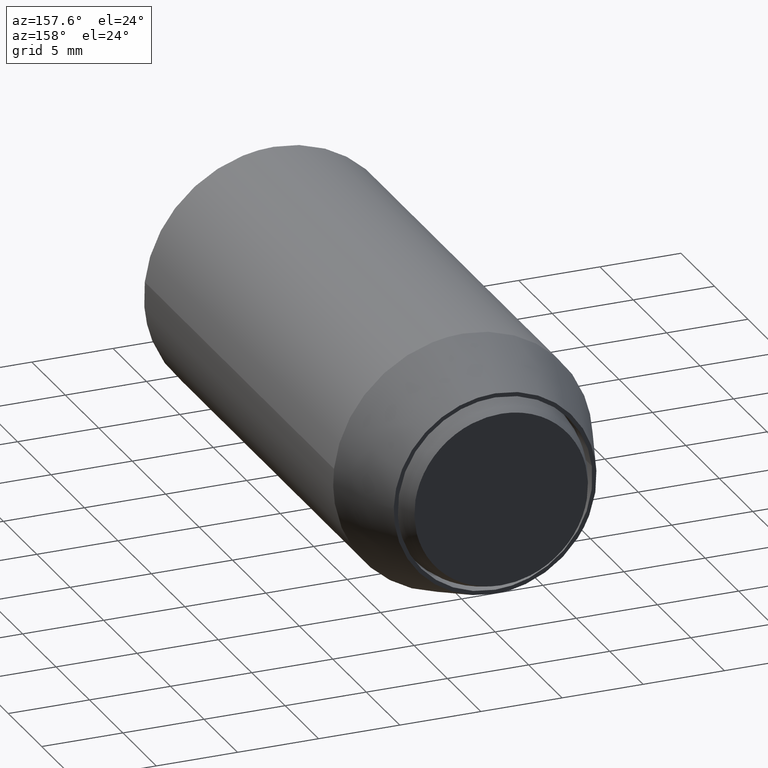
[diagram: clean part render]
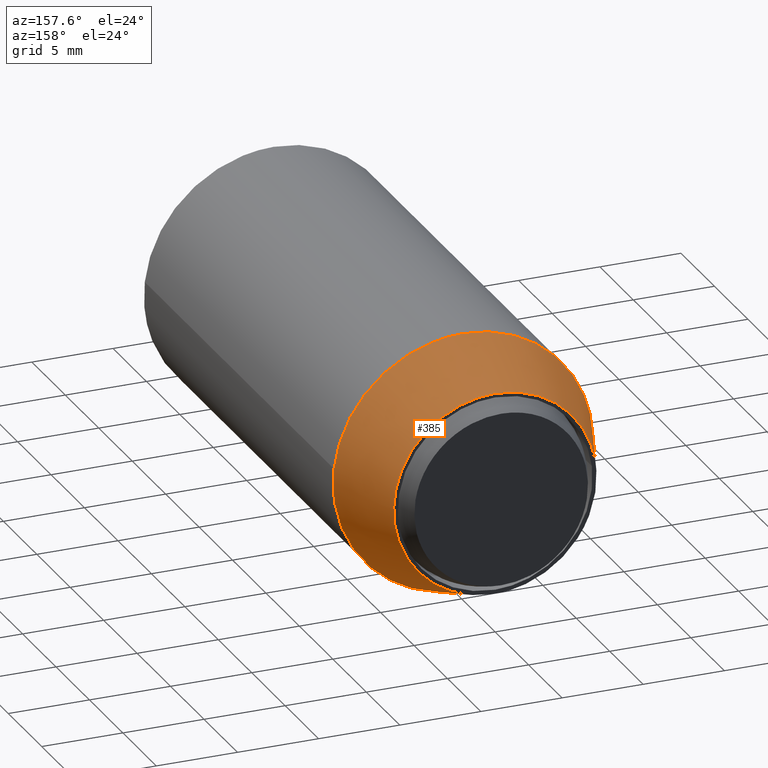
[diagram: same view with one face highlighted and labeled with its STEP entity id]
A machine part, auxiliary view. The second image highlights one B-rep face of the part: STEP entity #385.
In plain terms, the highlighted face is a freeform B-spline surface patch.
Its self-contained STEP definition (entity closure, byte-faithful):
#234=CARTESIAN_POINT('',(-5.033104737249632,0.120202150000000,-3.631170027191690));
#235=CARTESIAN_POINT('',(-3.313123014859355,0.120202150000000,-6.015208254572740));
#236=CARTESIAN_POINT('',(-0.378882498488206,0.120202150000000,-6.194674092705710));
#237=CARTESIAN_POINT('',(5.815791594217503,0.120202150000000,-6.573556591193916));
#238=CARTESIAN_POINT('',(6.194674092705709,0.120202150000000,-0.378882498488207));
#239=CARTESIAN_POINT('',(6.573556591193915,0.120202150000000,5.815791594217502));
#240=CARTESIAN_POINT('',(0.378882498488206,0.120202150000000,6.194674092705708));
#241=CARTESIAN_POINT('',(-5.815791594217503,0.120202150000000,6.573556591193914));
#242=CARTESIAN_POINT('',(-6.194674092705709,0.120202150000000,0.378882498488205));
#243=CARTESIAN_POINT('',(-6.524155679928798,-4.931293203749999,-4.706899576787980));
#244=CARTESIAN_POINT('',(-4.294631537413486,-4.931293203750000,-7.797206127975497));
#245=CARTESIAN_POINT('',(-0.491125961723622,-4.931293203750000,-8.029838494741666));
#246=CARTESIAN_POINT('',(7.538712533018043,-4.931293203750001,-8.520964456465288));
#247=CARTESIAN_POINT('',(8.029838494741664,-4.931293203750000,-0.491125961723623));
#248=CARTESIAN_POINT('',(8.520964456465288,-4.931293203750001,7.538712533018041));
#249=CARTESIAN_POINT('',(0.491125961723622,-4.931293203750000,8.029838494741663));
#250=CARTESIAN_POINT('',(-7.538712533018043,-4.931293203750001,8.520964456465284));
#251=CARTESIAN_POINT('',(-8.029838494741664,-4.931293203750000,0.491125961723621));
#259=(BOUNDED_SURFACE()B_SPLINE_SURFACE(2,1,((#234,#243),(#235,#244),(#236,#245),(#237,#246),(#238,#247),(#239,#248),(#240,#249),(#241,#250),(#242,#251)),.UNSPECIFIED.,.F.,.F.,.U.)B_SPLINE_SURFACE_WITH_KNOTS((3,2,2,2,3),(2,2),(0.0,7.464314790066237,20.793448343755941,34.122581897445663,47.451715451135371),(0.0,5.375689005745859),.UNSPECIFIED.)GEOMETRIC_REPRESENTATION_ITEM()RATIONAL_B_SPLINE_SURFACE(((0.855662221768731,0.855662221768731),(0.835979797464467,0.835979797464467),(1.0,1.0),(0.707106781186548,0.707106781186548),(1.0,1.0),(0.707106781186548,0.707106781186548),(1.0,1.0),(0.707106781186548,0.707106781186548),(1.0,1.0)))REPRESENTATION_ITEM('')SURFACE());
#260=CARTESIAN_POINT('',(-5.068584831065254,-3.391263E-013,-3.656767398987356));
#261=VERTEX_POINT('',#260);
#262=CARTESIAN_POINT('',(0.0,0.0,-6.250000000000001));
#263=VERTEX_POINT('',#262);
#264=CARTESIAN_POINT('',(-5.068584831065254,-3.391263E-013,-3.656767398987356));
#265=CARTESIAN_POINT('',(-3.197678305980489,0.0,-6.250000000000002));
#266=CARTESIAN_POINT('',(0.0,0.0,-6.250000000000001));
#274=(BOUNDED_CURVE()B_SPLINE_CURVE(2,(#264,#265,#266),.UNSPECIFIED.,.F.,.U.)B_SPLINE_CURVE_WITH_KNOTS((3,3),(0.850743050382160,1.0),.UNSPECIFIED.)CURVE()GEOMETRIC_REPRESENTATION_ITEM()RATIONAL_B_SPLINE_CURVE((0.859068214727271,0.825134606384615,1.0))REPRESENTATION_ITEM(''));
#275=EDGE_CURVE('',#261,#263,#274,.T.);
#276=ORIENTED_EDGE('',*,*,#275,.T.);
#277=CARTESIAN_POINT('',(0.0,0.0,6.249999999999999));
#278=VERTEX_POINT('',#277);
#279=CARTESIAN_POINT('',(0.0,0.0,-6.250000000000001));
#280=CARTESIAN_POINT('',(6.249999999999999,0.0,-6.250000000000002));
#281=CARTESIAN_POINT('',(6.250000000000000,0.0,-1.291960E-015));
#282=CARTESIAN_POINT('',(6.249999999999999,0.0,6.249999999999999));
#283=CARTESIAN_POINT('',(0.0,0.0,6.249999999999999));
#291=(BOUNDED_CURVE()B_SPLINE_CURVE(2,(#279,#280,#281,#282,#283),.UNSPECIFIED.,.F.,.U.)B_SPLINE_CURVE_WITH_KNOTS((3,2,3),(0.0,0.250000000000000,0.500000000000000),.UNSPECIFIED.)CURVE()GEOMETRIC_REPRESENTATION_ITEM()RATIONAL_B_SPLINE_CURVE((1.0,0.707106781186547,1.0,0.707106781186547,1.0))REPRESENTATION_ITEM(''));
#292=EDGE_CURVE('',#263,#278,#291,.T.);
#293=ORIENTED_EDGE('',*,*,#292,.T.);
#294=CARTESIAN_POINT('',(-6.238341910631632,0.000001987883536,0.381550995179467));
#295=VERTEX_POINT('',#294);
#296=CARTESIAN_POINT('',(0.0,0.0,6.249999999999999));
#297=CARTESIAN_POINT('',(-5.879414759705009,0.000000993941768,6.249999977914886));
#298=CARTESIAN_POINT('',(-6.238341910631632,0.000001987883536,0.381550995179467));
#306=(BOUNDED_CURVE()B_SPLINE_CURVE(2,(#296,#297,#298),.UNSPECIFIED.,.F.,.U.)B_SPLINE_CURVE_WITH_KNOTS((3,3),(0.500000000000000,0.739333026763493),.UNSPECIFIED.)CURVE()GEOMETRIC_REPRESENTATION_ITEM()RATIONAL_B_SPLINE_CURVE((1.0,0.719603917691498,0.976072179955150))REPRESENTATION_ITEM(''));
#307=EDGE_CURVE('',#278,#295,#306,.T.);
#308=ORIENTED_EDGE('',*,*,#307,.T.);
#309=CARTESIAN_POINT('',(-7.985078436995666,-4.808085999013084,0.488387499100347));
#310=VERTEX_POINT('',#309);
#311=CARTESIAN_POINT('',(-6.238341910631632,0.000001987883536,0.381550995179467));
#312=CARTESIAN_POINT('',(-7.985078436995666,-4.808085999013084,0.488387499100347));
#313=QUASI_UNIFORM_CURVE('',1,(#311,#312),.UNSPECIFIED.,.F.,.U.);
#314=EDGE_CURVE('',#295,#310,#313,.T.);
#315=ORIENTED_EDGE('',*,*,#314,.T.);
#316=CARTESIAN_POINT('',(0.0,-4.808085999999999,7.999999999999998));
#317=VERTEX_POINT('',#316);
#318=CARTESIAN_POINT('',(0.0,-4.808085999999999,7.999999999999998));
#319=CARTESIAN_POINT('',(-7.525649306825357,-4.808086000000000,7.999999999999999));
#320=CARTESIAN_POINT('',(-7.985078436995666,-4.808085999013084,0.488387499100347));
#328=(BOUNDED_CURVE()B_SPLINE_CURVE(2,(#318,#319,#320),.UNSPECIFIED.,.F.,.U.)B_SPLINE_CURVE_WITH_KNOTS((3,3),(0.500000000000000,0.739332979899622),.UNSPECIFIED.)CURVE()GEOMETRIC_REPRESENTATION_ITEM()RATIONAL_B_SPLINE_CURVE((1.0,0.719603972595938,0.976072079516917))REPRESENTATION_ITEM(''));
#329=EDGE_CURVE('',#317,#310,#328,.T.);
#330=ORIENTED_EDGE('',*,*,#329,.F.);
#331=CARTESIAN_POINT('',(7.947754839124859,-4.808085999999999,0.912794071540353));
#332=VERTEX_POINT('',#331);
#333=CARTESIAN_POINT('',(7.947754839124859,-4.808085999999999,0.912794071540353));
#334=CARTESIAN_POINT('',(7.133794206699027,-4.808086000000000,7.999999999999999));
#335=CARTESIAN_POINT('',(0.0,-4.808085999999999,7.999999999999998));
#343=(BOUNDED_CURVE()B_SPLINE_CURVE(2,(#333,#334,#335),.UNSPECIFIED.,.F.,.U.)B_SPLINE_CURVE_WITH_KNOTS((3,3),(0.269767516400934,0.500000000000000),.UNSPECIFIED.)CURVE()GEOMETRIC_REPRESENTATION_ITEM()RATIONAL_B_SPLINE_CURVE((0.957344208849934,0.730265867213016,1.0))REPRESENTATION_ITEM(''));
#344=EDGE_CURVE('',#332,#317,#343,.T.);
#345=ORIENTED_EDGE('',*,*,#344,.F.);
#346=CARTESIAN_POINT('',(0.0,-4.808085999999999,-8.000000000000002));
#347=VERTEX_POINT('',#346);
#348=CARTESIAN_POINT('',(0.0,-4.808085999999999,-8.000000000000002));
#349=CARTESIAN_POINT('',(8.0,-4.808086000000000,-8.000000000000002));
#350=CARTESIAN_POINT('',(8.0,-4.808085999999999,-1.291960E-015));
#351=CARTESIAN_POINT('',(8.0,-4.808085999999999,0.457892201503595));
#352=CARTESIAN_POINT('',(7.947754839124859,-4.808085999999999,0.912794071540353));
#360=(BOUNDED_CURVE()B_SPLINE_CURVE(2,(#348,#349,#350,#351,#352),.UNSPECIFIED.,.F.,.U.)B_SPLINE_CURVE_WITH_KNOTS((3,2,3),(0.0,0.250000000000000,0.269767516400934),.UNSPECIFIED.)CURVE()GEOMETRIC_REPRESENTATION_ITEM()RATIONAL_B_SPLINE_CURVE((1.0,0.707106781186548,1.0,0.976840913973531,0.957344208849934))REPRESENTATION_ITEM(''));
#361=EDGE_CURVE('',#347,#332,#360,.T.);
#362=ORIENTED_EDGE('',*,*,#361,.F.);
#363=CARTESIAN_POINT('',(-6.487788583763864,-4.808086000000373,-4.680662270703309));
#364=VERTEX_POINT('',#363);
#365=CARTESIAN_POINT('',(-6.487788583763864,-4.808086000000373,-4.680662270703309));
#366=CARTESIAN_POINT('',(-4.093028231655796,-4.808085999999999,-8.000000000000004));
#367=CARTESIAN_POINT('',(0.0,-4.808085999999999,-8.000000000000002));
#375=(BOUNDED_CURVE()B_SPLINE_CURVE(2,(#365,#366,#367),.UNSPECIFIED.,.F.,.U.)B_SPLINE_CURVE_WITH_KNOTS((3,3),(0.850743050382137,1.0),.UNSPECIFIED.)CURVE()GEOMETRIC_REPRESENTATION_ITEM()RATIONAL_B_SPLINE_CURVE((0.859068214727282,0.825134606384587,1.0))REPRESENTATION_ITEM(''));
#376=EDGE_CURVE('',#364,#347,#375,.T.);
#377=ORIENTED_EDGE('',*,*,#376,.F.);
#378=CARTESIAN_POINT('',(-5.068584831065254,-3.391263E-013,-3.656767398987356));
#379=CARTESIAN_POINT('',(-6.487788583763864,-4.808086000000373,-4.680662270703309));
#380=QUASI_UNIFORM_CURVE('',1,(#378,#379),.UNSPECIFIED.,.F.,.U.);
#381=EDGE_CURVE('',#261,#364,#380,.T.);
#382=ORIENTED_EDGE('',*,*,#381,.F.);
#383=EDGE_LOOP('',(#276,#293,#308,#315,#330,#345,#362,#377,#382));
#384=FACE_OUTER_BOUND('',#383,.T.);
#385=ADVANCED_FACE('',(#384),#259,.T.);